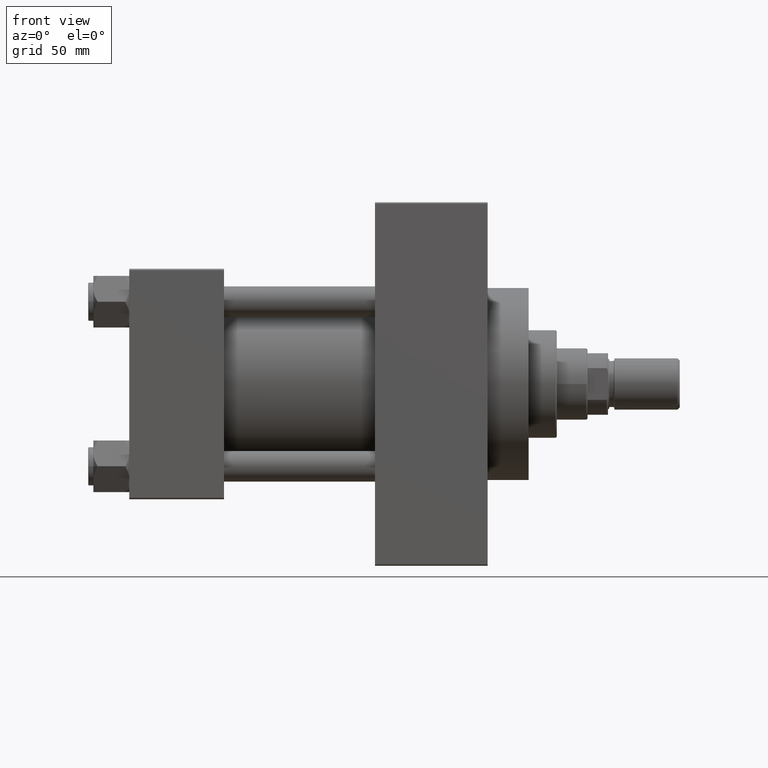
[diagram: clean part render]
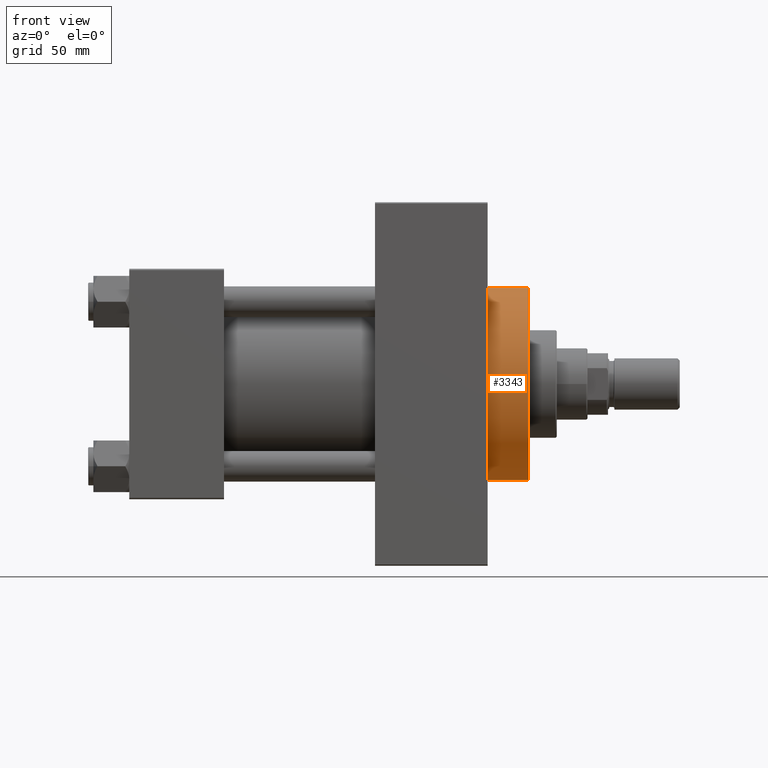
[diagram: same view with one face highlighted and labeled with its STEP entity id]
A machine part, front view. The second image highlights one B-rep face of the part: STEP entity #3343.
In plain terms, the highlighted cylindrical surface (partial cylindrical patch) has radius 37.5 mm, axis along (-1, -0, -0).
Its self-contained STEP definition (entity closure, byte-faithful):
#2438 = CARTESIAN_POINT ( 'NONE',  ( 140.0000000000000000, 4.592425496802575156E-15, -37.50000000000000711 ) ) ;
#3270 = CARTESIAN_POINT ( 'NONE',  ( 156.0000000000000284, 0.000000000000000000, 37.50000000000000711 ) ) ;
#3343 = ADVANCED_FACE ( 'NONE', ( #12388 ), #19847, .T. ) ;
#5062 = VECTOR ( 'NONE', #41101, 1000.000000000000000 ) ;
#8779 = CARTESIAN_POINT ( 'NONE',  ( 156.0000000000000284, 0.000000000000000000, 37.50000000000000711 ) ) ;
#9009 = DIRECTION ( 'NONE',  ( 0.000000000000000000, 0.000000000000000000, 1.000000000000000000 ) ) ;
#9034 = LINE ( 'NONE', #15787, #43995 ) ;
#10761 = CARTESIAN_POINT ( 'NONE',  ( 140.0000000000000000, 0.000000000000000000, 37.50000000000000711 ) ) ;
#11656 = EDGE_LOOP ( 'NONE', ( #18500, #33691, #24468, #17725 ) ) ;
#12388 = FACE_OUTER_BOUND ( 'NONE', #11656, .T. ) ;
#13414 = AXIS2_PLACEMENT_3D ( 'NONE', #32898, #37476, #47613 ) ;
#15787 = CARTESIAN_POINT ( 'NONE',  ( 156.0000000000000284, 4.592425496802575156E-15, -37.50000000000000711 ) ) ;
#17725 = ORIENTED_EDGE ( 'NONE', *, *, #20345, .T. ) ;
#18500 = ORIENTED_EDGE ( 'NONE', *, *, #26161, .F. ) ;
#18752 = VERTEX_POINT ( 'NONE', #10761 ) ;
#19847 = CYLINDRICAL_SURFACE ( 'NONE', #20344, 37.50000000000000711 ) ;
#20311 = CARTESIAN_POINT ( 'NONE',  ( 156.0000000000000284, 0.000000000000000000, 0.000000000000000000 ) ) ;
#20344 = AXIS2_PLACEMENT_3D ( 'NONE', #20311, #42021, #9009 ) ;
#20345 = EDGE_CURVE ( 'NONE', #18752, #29050, #36875, .T. ) ;
#24468 = ORIENTED_EDGE ( 'NONE', *, *, #40564, .T. ) ;
#24909 = CARTESIAN_POINT ( 'NONE',  ( 156.0000000000000284, 4.592425496802575156E-15, -37.50000000000000711 ) ) ;
#25717 = CIRCLE ( 'NONE', #13414, 37.50000000000000711 ) ;
#25795 = DIRECTION ( 'NONE',  ( 1.000000000000000000, 0.000000000000000000, 0.000000000000000000 ) ) ;
#26161 = EDGE_CURVE ( 'NONE', #43427, #29050, #9034, .T. ) ;
#29050 = VERTEX_POINT ( 'NONE', #2438 ) ;
#30485 = DIRECTION ( 'NONE',  ( -1.000000000000000000, -0.000000000000000000, -0.000000000000000000 ) ) ;
#32898 = CARTESIAN_POINT ( 'NONE',  ( 156.0000000000000284, 0.000000000000000000, 0.000000000000000000 ) ) ;
#33691 = ORIENTED_EDGE ( 'NONE', *, *, #34049, .F. ) ;
#34049 = EDGE_CURVE ( 'NONE', #36798, #43427, #25717, .T. ) ;
#36798 = VERTEX_POINT ( 'NONE', #8779 ) ;
#36875 = CIRCLE ( 'NONE', #40726, 37.50000000000000711 ) ;
#37476 = DIRECTION ( 'NONE',  ( 1.000000000000000000, 0.000000000000000000, 0.000000000000000000 ) ) ;
#40564 = EDGE_CURVE ( 'NONE', #36798, #18752, #43522, .T. ) ;
#40726 = AXIS2_PLACEMENT_3D ( 'NONE', #44143, #25795, #44627 ) ;
#41101 = DIRECTION ( 'NONE',  ( -1.000000000000000000, -0.000000000000000000, -0.000000000000000000 ) ) ;
#42021 = DIRECTION ( 'NONE',  ( -1.000000000000000000, -0.000000000000000000, -0.000000000000000000 ) ) ;
#43427 = VERTEX_POINT ( 'NONE', #24909 ) ;
#43522 = LINE ( 'NONE', #3270, #5062 ) ;
#43995 = VECTOR ( 'NONE', #30485, 1000.000000000000000 ) ;
#44143 = CARTESIAN_POINT ( 'NONE',  ( 140.0000000000000000, 0.000000000000000000, 0.000000000000000000 ) ) ;
#44627 = DIRECTION ( 'NONE',  ( 0.000000000000000000, 0.000000000000000000, -1.000000000000000000 ) ) ;
#47613 = DIRECTION ( 'NONE',  ( 0.000000000000000000, 0.000000000000000000, -1.000000000000000000 ) ) ;